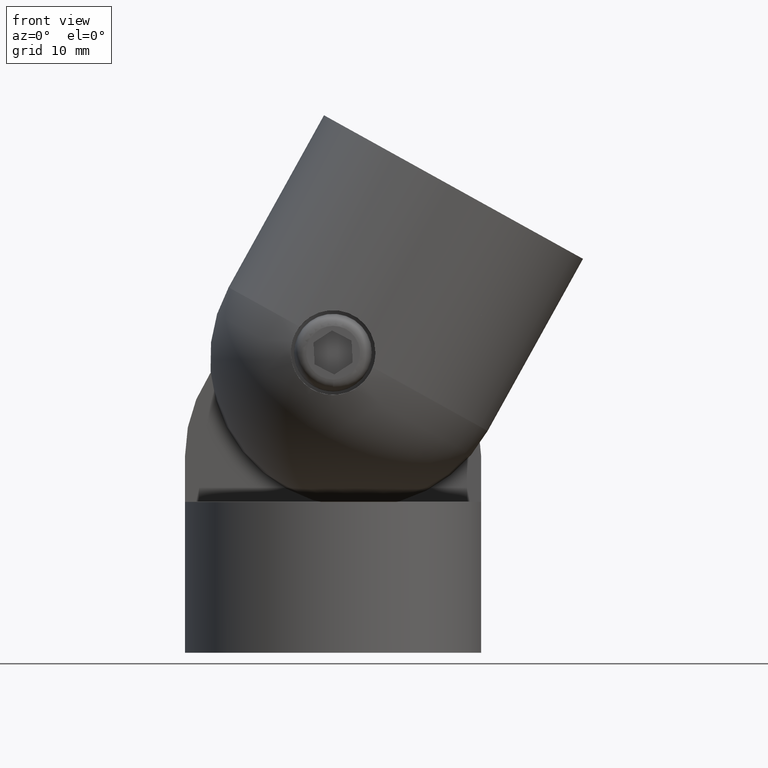
[diagram: clean part render]
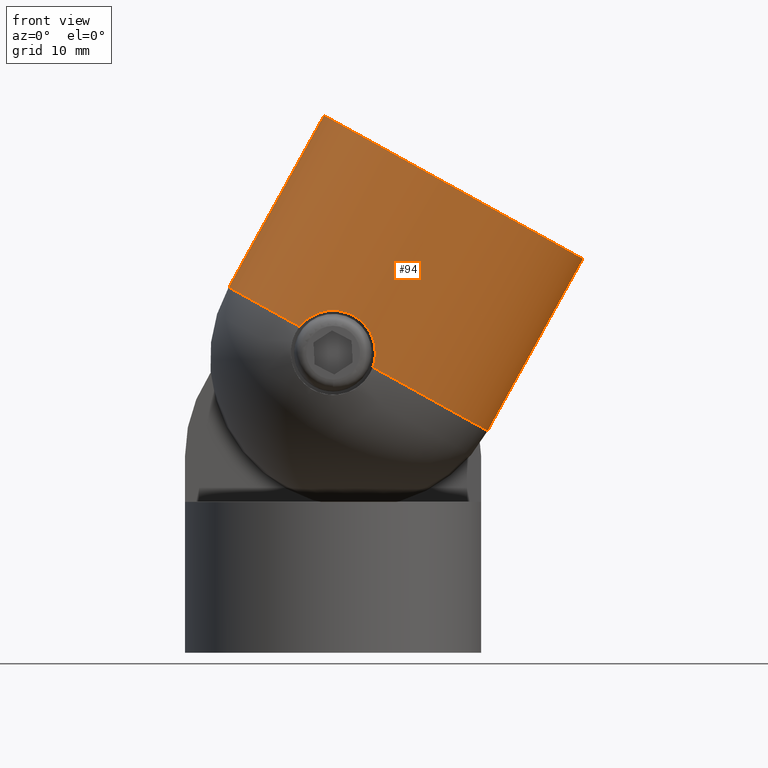
[diagram: same view with one face highlighted and labeled with its STEP entity id]
A machine part, front view. The second image highlights one B-rep face of the part: STEP entity #94.
In plain terms, the highlighted cylindrical surface (bore or boss wall) has radius 21 mm, axis along (-0.4848, 0, -0.8746).
Its self-contained STEP definition (entity closure, byte-faithful):
#37=B_SPLINE_CURVE_WITH_KNOTS('',3,(#629,#630,#631,#632,#633,#634,#635,
#636,#637,#638,#639,#640,#641,#642,#643,#644,#645,#646,#647,#648,#649,#650,
#651,#652,#653,#654,#655,#656,#657,#658,#659,#660,#661,#662,#663,#664),
 .UNSPECIFIED.,.F.,.F.,(4,2,2,2,2,2,2,2,2,2,2,2,2,2,2,2,2,4),(0.,0.0624999999999983,
0.124999999999997,0.187499999999995,0.218749999999995,0.249999999999994,
0.312499999999995,0.374999999999995,0.437499999999996,0.499999999999996,
0.562499999999997,0.624999999999997,0.687499999999998,0.749999999999998,
0.812499999999999,0.874999999999999,0.9375,1.),.UNSPECIFIED.);
#94=ADVANCED_FACE('',(#173,#174),#115,.T.);
#115=CYLINDRICAL_SURFACE('',#455,21.);
#122=LINE('',#669,#146);
#123=LINE('',#673,#147);
#146=VECTOR('',#519,1.);
#147=VECTOR('',#522,1.);
#173=FACE_BOUND('',#199,.T.);
#174=FACE_BOUND('',#200,.T.);
#199=EDGE_LOOP('',(#246,#247,#248,#249,#250,#251));
#200=EDGE_LOOP('',(#252));
#246=ORIENTED_EDGE('',*,*,#360,.F.);
#247=ORIENTED_EDGE('',*,*,#361,.T.);
#248=ORIENTED_EDGE('',*,*,#362,.T.);
#249=ORIENTED_EDGE('',*,*,#363,.F.);
#250=ORIENTED_EDGE('',*,*,#364,.T.);
#251=ORIENTED_EDGE('',*,*,#365,.T.);
#252=ORIENTED_EDGE('',*,*,#366,.T.);
#324=VERTEX_POINT('',#665);
#325=VERTEX_POINT('',#666);
#326=VERTEX_POINT('',#668);
#327=VERTEX_POINT('',#670);
#328=VERTEX_POINT('',#672);
#329=VERTEX_POINT('',#674);
#330=VERTEX_POINT('',#677);
#360=EDGE_CURVE('',#324,#325,#37,.T.);
#361=EDGE_CURVE('',#324,#326,#402,.T.);
#362=EDGE_CURVE('',#326,#327,#122,.T.);
#363=EDGE_CURVE('',#328,#327,#403,.T.);
#364=EDGE_CURVE('',#328,#329,#123,.T.);
#365=EDGE_CURVE('',#329,#325,#404,.T.);
#366=EDGE_CURVE('',#330,#330,#405,.T.);
#402=CIRCLE('',#451,21.);
#403=CIRCLE('',#452,21.);
#404=CIRCLE('',#453,21.);
#405=CIRCLE('',#454,21.);
#451=AXIS2_PLACEMENT_3D('',#667,#517,#518);
#452=AXIS2_PLACEMENT_3D('',#671,#520,#521);
#453=AXIS2_PLACEMENT_3D('',#675,#523,#524);
#454=AXIS2_PLACEMENT_3D('',#676,#525,#526);
#455=AXIS2_PLACEMENT_3D('',#678,#527,#528);
#517=DIRECTION('',(0.484809620246339,0.,0.874619707139395));
#518=DIRECTION('',(0.874619707139395,0.,-0.484809620246339));
#519=DIRECTION('',(0.484809620246339,0.,0.874619707139395));
#520=DIRECTION('',(-0.484809620246339,0.,-0.874619707139395));
#521=DIRECTION('',(0.874619707139395,0.,-0.484809620246339));
#522=DIRECTION('',(-0.484809620246339,0.,-0.874619707139395));
#523=DIRECTION('',(0.484809620246339,0.,0.874619707139395));
#524=DIRECTION('',(0.874619707139395,0.,-0.484809620246339));
#525=DIRECTION('',(-0.484809620246339,0.,-0.874619707139395));
#526=DIRECTION('',(0.874619707139395,0.,-0.484809620246339));
#527=DIRECTION('',(-0.484809620246339,0.,-0.874619707139395));
#528=DIRECTION('',(0.874619707139395,0.,-0.484809620246339));
#629=CARTESIAN_POINT('',(5.631459728409,-20.8653489895759,40.4945746023323));
#630=CARTESIAN_POINT('',(5.75666263957292,-20.8716751864813,40.8351206335457));
#631=CARTESIAN_POINT('',(5.84927966075009,-20.8814106779172,41.1816129215023));
#632=CARTESIAN_POINT('',(5.97217334124865,-20.9050979137473,41.8860464370092));
#633=CARTESIAN_POINT('',(6.00241000642689,-20.9191539209705,42.2462229736764));
#634=CARTESIAN_POINT('',(5.99728861412691,-20.9474947615892,42.9688241654843));
#635=CARTESIAN_POINT('',(5.96239635984274,-20.9614995982135,43.3251279627115));
#636=CARTESIAN_POINT('',(5.86298043960235,-20.9788641969445,43.8524205151118));
#637=CARTESIAN_POINT('',(5.82194677779763,-20.9840415079581,44.0269834222621));
#638=CARTESIAN_POINT('',(5.72373654802991,-20.9925284310584,44.3736734750153));
#639=CARTESIAN_POINT('',(5.66623615079967,-20.9958376895464,44.5464762041335));
#640=CARTESIAN_POINT('',(5.47252121918615,-21.0017990043582,45.0512485318773));
#641=CARTESIAN_POINT('',(5.31476345190341,-21.000598763803,45.3723973435805));
#642=CARTESIAN_POINT('',(4.94318591321037,-20.9834675111546,45.984518010169));
#643=CARTESIAN_POINT('',(4.72657250828857,-20.9672102843819,46.2782426999328));
#644=CARTESIAN_POINT('',(4.25052106428911,-20.9168328430235,46.8149093762983));
#645=CARTESIAN_POINT('',(3.99128339334834,-20.8829008238498,47.0590604526968));
#646=CARTESIAN_POINT('',(3.43142633380005,-20.795336400612,47.4997984552781));
#647=CARTESIAN_POINT('',(3.12835200103574,-20.7411091383705,47.6970840912145));
#648=CARTESIAN_POINT('',(2.50429854253357,-20.6160323836362,48.0288230362582));
#649=CARTESIAN_POINT('',(2.18103782817776,-20.5449206903265,48.1655856966375));
#650=CARTESIAN_POINT('',(1.51234249240526,-20.38627458477,48.3818983435322));
#651=CARTESIAN_POINT('',(1.16765320028025,-20.2988023724791,48.4604778378069));
#652=CARTESIAN_POINT('',(0.481195715439217,-20.1159427199808,48.5557030986054));
#653=CARTESIAN_POINT('',(0.136274713514892,-20.0198157685276,48.5734954000375));
#654=CARTESIAN_POINT('',(-0.557811640479396,-19.8212223131951,48.5490984236191));
#655=CARTESIAN_POINT('',(-0.902990938848728,-19.7198857249485,48.5066174801506));
#656=CARTESIAN_POINT('',(-1.57579679874316,-19.5216727210352,48.3645754469741));
#657=CARTESIAN_POINT('',(-1.90578549650478,-19.4240937355474,48.2649764551603));
#658=CARTESIAN_POINT('',(-2.55366217903294,-19.2369299804915,48.0056396152885));
#659=CARTESIAN_POINT('',(-2.86698294285115,-19.1487462732105,47.8472133645263));
#660=CARTESIAN_POINT('',(-3.45906286212986,-18.9920832196689,47.4799011524967));
#661=CARTESIAN_POINT('',(-3.74014421649671,-18.9229044521093,47.2701491295823));
#662=CARTESIAN_POINT('',(-4.2710199794788,-18.8087246193045,46.7941246643598));
#663=CARTESIAN_POINT('',(-4.51801076240652,-18.7645085770833,46.5296847825258));
#664=CARTESIAN_POINT('',(-4.74003931256345,-18.7364209980224,46.243590397877));
#665=CARTESIAN_POINT('',(5.631459728409,-20.8653489895759,40.4945746023323));
#666=CARTESIAN_POINT('',(-4.74003931256345,-18.7364209980224,46.243590397877));
#667=CARTESIAN_POINT('',(3.55486654045628,0.,41.6456490025996));
#668=CARTESIAN_POINT('',(21.9218803903836,0.,31.4646469774265));
#669=CARTESIAN_POINT('',(25.0731429219848,0.,37.1496750738326));
#670=CARTESIAN_POINT('',(25.0731429219848,0.,37.1496750738326));
#671=CARTESIAN_POINT('',(6.70612907205748,0.,47.3306770990057));
#672=CARTESIAN_POINT('',(-11.6608847778698,0.,57.5116791241788));
#673=CARTESIAN_POINT('',(-11.6608847778698,-4.9201125312466E-14,57.5116791241788));
#674=CARTESIAN_POINT('',(-14.812147309471,-4.9201125312466E-14,51.8266510277727));
#675=CARTESIAN_POINT('',(3.55486654045628,0.,41.6456490025996));
#676=CARTESIAN_POINT('',(17.0810549453291,0.,66.0475388317887));
#677=CARTESIAN_POINT('',(35.4480687952564,0.,55.8665368066156));
#678=CARTESIAN_POINT('',(17.0810549453291,0.,66.0475388317887));